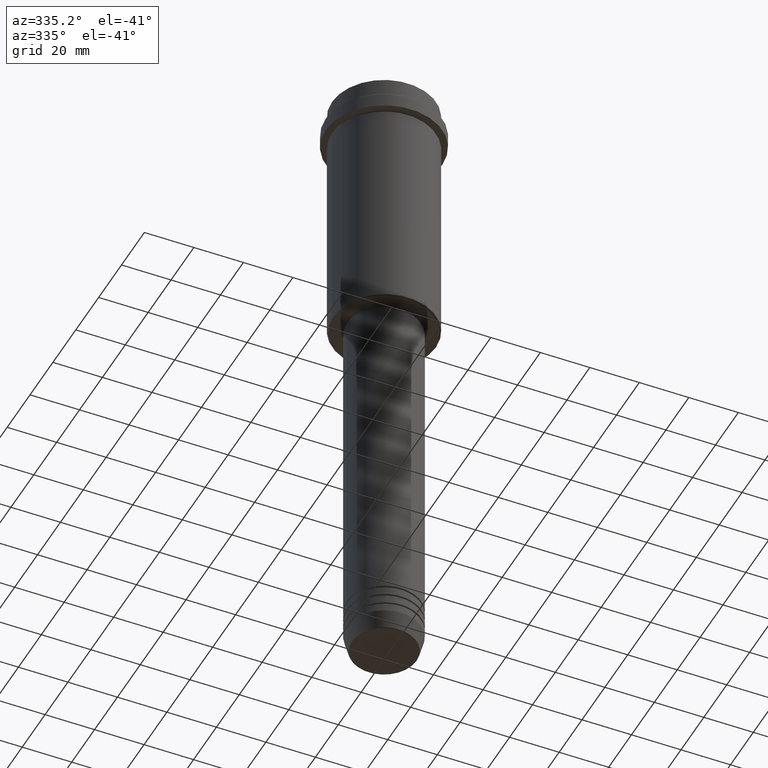
[diagram: clean part render]
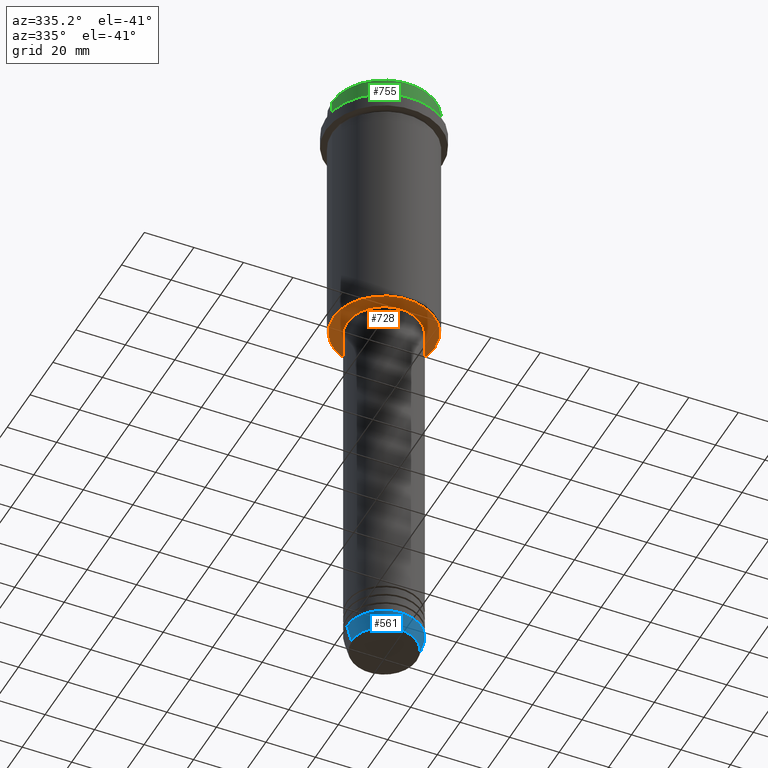
[diagram: same view with three faces highlighted in distinct colors, each labeled with its STEP entity id]
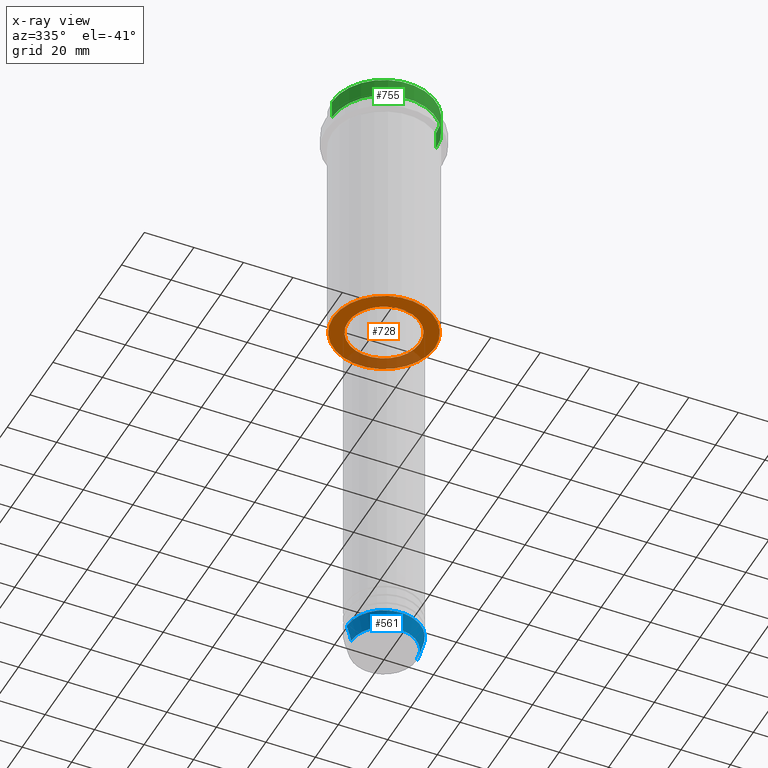
[diagram: x-ray of the same camera — body ghosted, the three highlighted faces saturated]
A machine part, auxiliary view with three faces highlighted in distinct colors.
The next image is the same camera in x-ray (body ghosted, the three faces saturated) — at least one of them is partly hidden behind the body in this view.
Their STEP definitions:

[orange] entity #728 — the highlighted planar face has unit normal (0, 0, -1).
#64 = PLANE ( 'NONE',  #1217 ) ;
#97 = DIRECTION ( 'NONE',  ( 0.000000000000000000, 0.000000000000000000, -1.000000000000000000 ) ) ;
#226 = DIRECTION ( 'NONE',  ( 0.000000000000000000, 0.000000000000000000, -1.000000000000000000 ) ) ;
#237 = CARTESIAN_POINT ( 'NONE',  ( 14.49999999999999467, 0.000000000000000000, -105.0000000000000142 ) ) ;
#266 = CIRCLE ( 'NONE', #1280, 20.49999999999993605 ) ;
#277 = DIRECTION ( 'NONE',  ( -1.000000000000000000, 0.000000000000000000, -0.000000000000000000 ) ) ;
#282 = FACE_BOUND ( 'NONE', #678, .T. ) ;
#315 = ORIENTED_EDGE ( 'NONE', *, *, #936, .T. ) ;
#347 = DIRECTION ( 'NONE',  ( -0.000000000000000000, -0.000000000000000000, 1.000000000000000000 ) ) ;
#353 = DIRECTION ( 'NONE',  ( 1.000000000000000000, 0.000000000000000000, 0.000000000000000000 ) ) ;
#364 = CARTESIAN_POINT ( 'NONE',  ( 20.49999999999993605, 0.000000000000000000, -105.0000000000000142 ) ) ;
#389 = DIRECTION ( 'NONE',  ( 0.000000000000000000, 0.000000000000000000, -1.000000000000000000 ) ) ;
#396 = EDGE_CURVE ( 'NONE', #1357, #1327, #1256, .T. ) ;
#402 = VERTEX_POINT ( 'NONE', #1304 ) ;
#467 = CARTESIAN_POINT ( 'NONE',  ( 0.000000000000000000, 0.000000000000000000, -105.0000000000000142 ) ) ;
#490 = EDGE_CURVE ( 'NONE', #1327, #1357, #266, .T. ) ;
#502 = CIRCLE ( 'NONE', #774, 14.49999999999999467 ) ;
#533 = EDGE_CURVE ( 'NONE', #402, #981, #1257, .T. ) ;
#545 = CARTESIAN_POINT ( 'NONE',  ( 0.000000000000000000, 0.000000000000000000, -105.0000000000000142 ) ) ;
#562 = DIRECTION ( 'NONE',  ( -1.000000000000000000, 0.000000000000000000, 0.000000000000000000 ) ) ;
#566 = ORIENTED_EDGE ( 'NONE', *, *, #396, .T. ) ;
#597 = EDGE_LOOP ( 'NONE', ( #1274, #566 ) ) ;
#670 = DIRECTION ( 'NONE',  ( 1.000000000000000000, 0.000000000000000000, 0.000000000000000000 ) ) ;
#674 = ORIENTED_EDGE ( 'NONE', *, *, #533, .T. ) ;
#678 = EDGE_LOOP ( 'NONE', ( #315, #674 ) ) ;
#728 = ADVANCED_FACE ( 'NONE', ( #842, #282 ), #64, .T. ) ;
#774 = AXIS2_PLACEMENT_3D ( 'NONE', #1408, #876, #670 ) ;
#842 = FACE_OUTER_BOUND ( 'NONE', #597, .T. ) ;
#876 = DIRECTION ( 'NONE',  ( -0.000000000000000000, -0.000000000000000000, 1.000000000000000000 ) ) ;
#915 = CARTESIAN_POINT ( 'NONE',  ( -20.49999999999993605, 2.541142108230753930E-15, -105.0000000000000142 ) ) ;
#936 = EDGE_CURVE ( 'NONE', #981, #402, #502, .T. ) ;
#939 = AXIS2_PLACEMENT_3D ( 'NONE', #467, #347, #353 ) ;
#981 = VERTEX_POINT ( 'NONE', #237 ) ;
#1115 = CARTESIAN_POINT ( 'NONE',  ( 0.000000000000000000, 0.000000000000000000, -105.0000000000000142 ) ) ;
#1213 = AXIS2_PLACEMENT_3D ( 'NONE', #1115, #97, #562 ) ;
#1217 = AXIS2_PLACEMENT_3D ( 'NONE', #1364, #389, #277 ) ;
#1224 = DIRECTION ( 'NONE',  ( -1.000000000000000000, 0.000000000000000000, 0.000000000000000000 ) ) ;
#1256 = CIRCLE ( 'NONE', #1213, 20.49999999999993605 ) ;
#1257 = CIRCLE ( 'NONE', #939, 14.49999999999999467 ) ;
#1274 = ORIENTED_EDGE ( 'NONE', *, *, #490, .T. ) ;
#1280 = AXIS2_PLACEMENT_3D ( 'NONE', #545, #226, #1224 ) ;
#1304 = CARTESIAN_POINT ( 'NONE',  ( -14.49999999999999467, 1.775737858763661620E-15, -105.0000000000000142 ) ) ;
#1327 = VERTEX_POINT ( 'NONE', #364 ) ;
#1357 = VERTEX_POINT ( 'NONE', #915 ) ;
#1364 = CARTESIAN_POINT ( 'NONE',  ( 0.000000000000000000, 21.00000000000000000, -105.0000000000000142 ) ) ;
#1408 = CARTESIAN_POINT ( 'NONE',  ( 0.000000000000000000, 0.000000000000000000, -105.0000000000000142 ) ) ;

[blue] entity #561 — the highlighted conical surface has half-angle 15 deg.
#120 = DIRECTION ( 'NONE',  ( 1.000000000000000000, 0.000000000000000000, 0.000000000000000000 ) ) ;
#156 = VERTEX_POINT ( 'NONE', #197 ) ;
#159 = VERTEX_POINT ( 'NONE', #644 ) ;
#181 = VERTEX_POINT ( 'NONE', #1081 ) ;
#183 = EDGE_CURVE ( 'NONE', #159, #156, #540, .T. ) ;
#197 = CARTESIAN_POINT ( 'NONE',  ( 15.00000000000000000, 0.000000000000000000, -253.0000000000000000 ) ) ;
#285 = AXIS2_PLACEMENT_3D ( 'NONE', #1037, #790, #677 ) ;
#308 = VECTOR ( 'NONE', #1204, 1000.000000000000000 ) ;
#326 = CARTESIAN_POINT ( 'NONE',  ( 0.000000000000000000, 0.000000000000000000, -253.0000000000000000 ) ) ;
#339 = VECTOR ( 'NONE', #905, 1000.000000000000000 ) ;
#426 = CONICAL_SURFACE ( 'NONE', #285, 15.00000000000000000, 0.2617993877991500740 ) ;
#440 = CARTESIAN_POINT ( 'NONE',  ( 0.000000000000000000, 0.000000000000000000, -259.6294095225513274 ) ) ;
#480 = CIRCLE ( 'NONE', #1351, 13.22365507213718772 ) ;
#503 = VERTEX_POINT ( 'NONE', #987 ) ;
#540 = LINE ( 'NONE', #1186, #308 ) ;
#561 = ADVANCED_FACE ( 'NONE', ( #1247 ), #426, .T. ) ;
#592 = CARTESIAN_POINT ( 'NONE',  ( -15.00000000000000000, 1.836970198721029589E-15, -253.0000000000000000 ) ) ;
#644 = CARTESIAN_POINT ( 'NONE',  ( 13.22365507213718772, 0.000000000000000000, -259.6294095225513274 ) ) ;
#677 = DIRECTION ( 'NONE',  ( 1.000000000000000000, 0.000000000000000000, 0.000000000000000000 ) ) ;
#740 = ORIENTED_EDGE ( 'NONE', *, *, #877, .T. ) ;
#778 = DIRECTION ( 'NONE',  ( 1.000000000000000000, 0.000000000000000000, 0.000000000000000000 ) ) ;
#780 = ORIENTED_EDGE ( 'NONE', *, *, #1027, .F. ) ;
#781 = ORIENTED_EDGE ( 'NONE', *, *, #828, .F. ) ;
#790 = DIRECTION ( 'NONE',  ( -0.000000000000000000, -0.000000000000000000, 1.000000000000000000 ) ) ;
#828 = EDGE_CURVE ( 'NONE', #503, #156, #1103, .T. ) ;
#877 = EDGE_CURVE ( 'NONE', #181, #159, #480, .T. ) ;
#905 = DIRECTION ( 'NONE',  ( -0.2588190451025213501, 3.169619151431772337E-17, 0.9659258262890680902 ) ) ;
#987 = CARTESIAN_POINT ( 'NONE',  ( -15.00000000000000000, 1.836970198721029589E-15, -253.0000000000000000 ) ) ;
#1027 = EDGE_CURVE ( 'NONE', #181, #503, #1119, .T. ) ;
#1037 = CARTESIAN_POINT ( 'NONE',  ( 0.000000000000000000, 0.000000000000000000, -253.0000000000000000 ) ) ;
#1081 = CARTESIAN_POINT ( 'NONE',  ( -13.22365507213718772, 1.728200442216588386E-15, -259.6294095225513274 ) ) ;
#1083 = DIRECTION ( 'NONE',  ( -0.000000000000000000, -0.000000000000000000, 1.000000000000000000 ) ) ;
#1085 = ORIENTED_EDGE ( 'NONE', *, *, #183, .T. ) ;
#1103 = CIRCLE ( 'NONE', #1190, 15.00000000000000000 ) ;
#1119 = LINE ( 'NONE', #592, #339 ) ;
#1186 = CARTESIAN_POINT ( 'NONE',  ( 15.00000000000000000, 0.000000000000000000, -253.0000000000000000 ) ) ;
#1190 = AXIS2_PLACEMENT_3D ( 'NONE', #326, #1214, #120 ) ;
#1204 = DIRECTION ( 'NONE',  ( 0.2588190451025213501, 0.000000000000000000, 0.9659258262890680902 ) ) ;
#1214 = DIRECTION ( 'NONE',  ( -0.000000000000000000, -0.000000000000000000, 1.000000000000000000 ) ) ;
#1232 = EDGE_LOOP ( 'NONE', ( #780, #740, #1085, #781 ) ) ;
#1247 = FACE_OUTER_BOUND ( 'NONE', #1232, .T. ) ;
#1351 = AXIS2_PLACEMENT_3D ( 'NONE', #440, #1083, #778 ) ;

[green] entity #755 — the highlighted cylindrical surface (partial cylindrical patch) has radius 21 mm, axis along (-0, -0, 1).
#102 = ORIENTED_EDGE ( 'NONE', *, *, #463, .F. ) ;
#115 = LINE ( 'NONE', #423, #914 ) ;
#174 = CARTESIAN_POINT ( 'NONE',  ( 0.000000000000000000, 0.000000000000000000, -0.4999999999999276135 ) ) ;
#242 = AXIS2_PLACEMENT_3D ( 'NONE', #174, #1048, #830 ) ;
#244 = CARTESIAN_POINT ( 'NONE',  ( 21.00000000000000000, 0.000000000000000000, -0.4999999999999276135 ) ) ;
#245 = AXIS2_PLACEMENT_3D ( 'NONE', #1177, #518, #501 ) ;
#249 = EDGE_CURVE ( 'NONE', #1061, #1201, #893, .T. ) ;
#272 = EDGE_CURVE ( 'NONE', #1245, #1221, #611, .T. ) ;
#293 = CYLINDRICAL_SURFACE ( 'NONE', #245, 21.00000000000000000 ) ;
#411 = CARTESIAN_POINT ( 'NONE',  ( 0.000000000000000000, 0.000000000000000000, -7.999999999999998224 ) ) ;
#423 = CARTESIAN_POINT ( 'NONE',  ( -21.00000000000000000, 2.571758278209441661E-15, 0.000000000000000000 ) ) ;
#454 = AXIS2_PLACEMENT_3D ( 'NONE', #411, #1160, #616 ) ;
#463 = EDGE_CURVE ( 'NONE', #1245, #1201, #115, .T. ) ;
#483 = VECTOR ( 'NONE', #1082, 1000.000000000000000 ) ;
#501 = DIRECTION ( 'NONE',  ( 1.000000000000000000, 0.000000000000000000, 0.000000000000000000 ) ) ;
#518 = DIRECTION ( 'NONE',  ( -0.000000000000000000, -0.000000000000000000, 1.000000000000000000 ) ) ;
#541 = CARTESIAN_POINT ( 'NONE',  ( 21.00000000000000000, 0.000000000000000000, -7.999999999999998224 ) ) ;
#580 = ORIENTED_EDGE ( 'NONE', *, *, #272, .T. ) ;
#611 = CIRCLE ( 'NONE', #454, 21.00000000000000000 ) ;
#616 = DIRECTION ( 'NONE',  ( 1.000000000000000000, 0.000000000000000000, 0.000000000000000000 ) ) ;
#640 = CARTESIAN_POINT ( 'NONE',  ( 21.00000000000000000, 0.000000000000000000, 0.000000000000000000 ) ) ;
#743 = CARTESIAN_POINT ( 'NONE',  ( -21.00000000000000000, 2.571758278209441661E-15, -0.4999999999999276135 ) ) ;
#755 = ADVANCED_FACE ( 'NONE', ( #1169 ), #293, .T. ) ;
#756 = DIRECTION ( 'NONE',  ( -0.000000000000000000, -0.000000000000000000, 1.000000000000000000 ) ) ;
#764 = ORIENTED_EDGE ( 'NONE', *, *, #249, .T. ) ;
#830 = DIRECTION ( 'NONE',  ( 1.000000000000000000, 0.000000000000000000, 0.000000000000000000 ) ) ;
#861 = CARTESIAN_POINT ( 'NONE',  ( -21.00000000000000000, 2.571758278209441661E-15, -7.999999999999998224 ) ) ;
#893 = CIRCLE ( 'NONE', #242, 21.00000000000000000 ) ;
#914 = VECTOR ( 'NONE', #756, 1000.000000000000000 ) ;
#927 = EDGE_LOOP ( 'NONE', ( #102, #580, #1007, #764 ) ) ;
#1007 = ORIENTED_EDGE ( 'NONE', *, *, #1210, .T. ) ;
#1048 = DIRECTION ( 'NONE',  ( 0.000000000000000000, 0.000000000000000000, -1.000000000000000000 ) ) ;
#1061 = VERTEX_POINT ( 'NONE', #244 ) ;
#1072 = LINE ( 'NONE', #640, #483 ) ;
#1082 = DIRECTION ( 'NONE',  ( -0.000000000000000000, -0.000000000000000000, 1.000000000000000000 ) ) ;
#1160 = DIRECTION ( 'NONE',  ( -0.000000000000000000, -0.000000000000000000, 1.000000000000000000 ) ) ;
#1169 = FACE_OUTER_BOUND ( 'NONE', #927, .T. ) ;
#1177 = CARTESIAN_POINT ( 'NONE',  ( 0.000000000000000000, 0.000000000000000000, 0.000000000000000000 ) ) ;
#1201 = VERTEX_POINT ( 'NONE', #743 ) ;
#1210 = EDGE_CURVE ( 'NONE', #1221, #1061, #1072, .T. ) ;
#1221 = VERTEX_POINT ( 'NONE', #541 ) ;
#1245 = VERTEX_POINT ( 'NONE', #861 ) ;